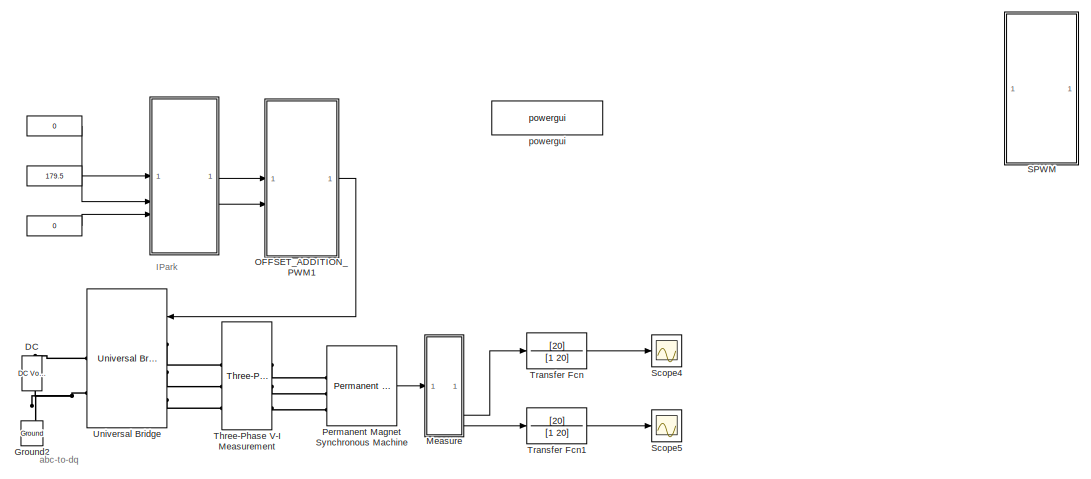
[diagram: root canvas - part 1/2, right side, full height]
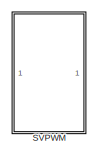
[diagram: root canvas - part 2/2, middle left region]
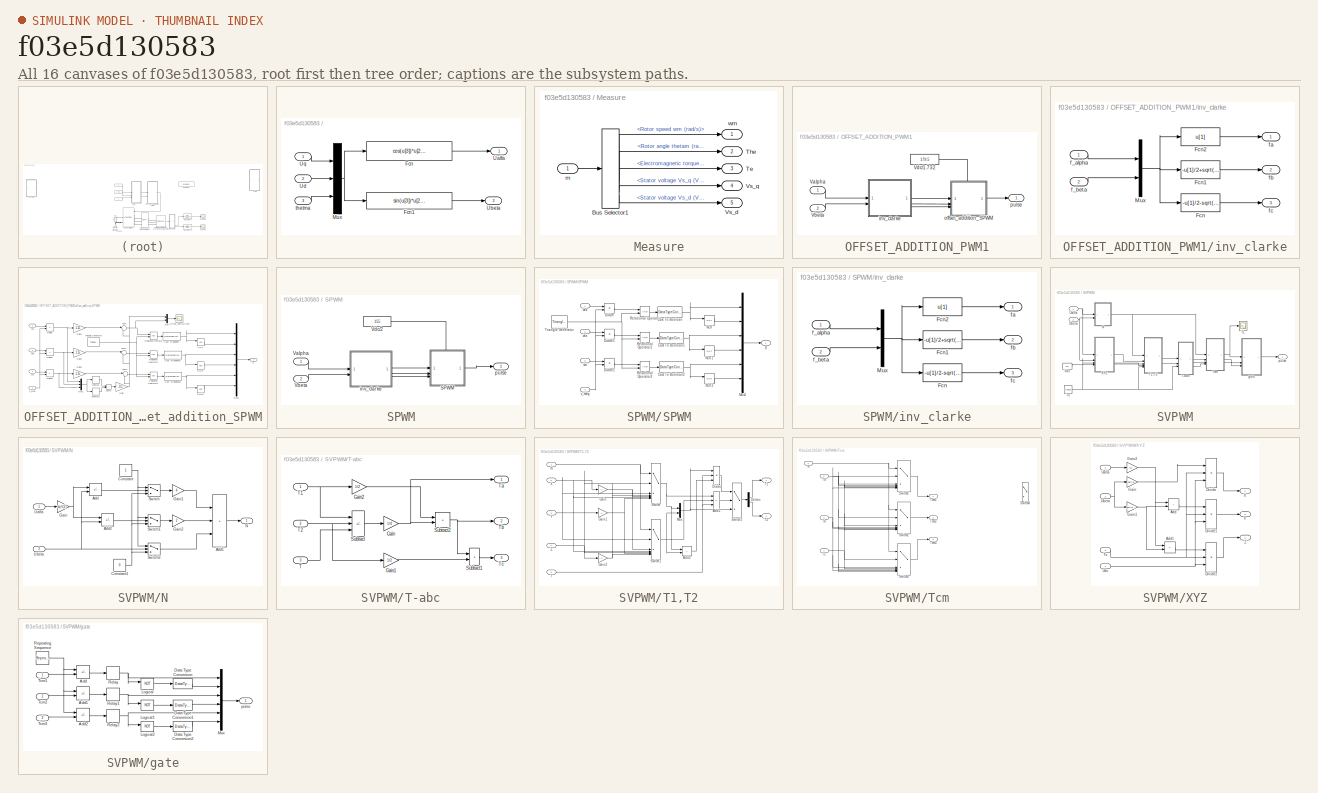
[diagram: thumbnail index - all 16 canvases of the model, root first then tree order]
MODEL slx_f03e5d130583
KIND model
CONFIG AbsTol = auto
CONFIG EnableMultiTasking = on
CONFIG FixedStep = 1e-6
CONFIG MaxStep = auto
CONFIG MinStep = auto
CONFIG RelTol = 1e-3
CONFIG SampleTimeConstraint = Unconstrained
CONFIG SolverName = ode3
CONFIG StartTime = 0.0
CONFIG StopTime = 0.6
BLOCK [Constant]   
  Value = 0
BLOCK [Constant]    
  Value = 179.5
BLOCK [SubSystem]      
BLOCK [Constant]        
  Value = 0
BLOCK [Fcn]      /Fcn
  Expr = cos(u[3])*u[2]-sin(u[3])*u[1]
BLOCK [Fcn]      /Fcn1
  Expr = sin(u[3])*u[2]+cos(u[3])*u[1]
BLOCK [Mux]      /Mux
  DisplayOption = bar
  Inputs = 3
BLOCK [Outport]      /Ualfa
BLOCK [Outport]      /Ubeta
  Port = 2
BLOCK [Inport]      /Ud
  Port = 2
BLOCK [Inport]      /Uq
BLOCK [Inport]      /thetma
  Port = 3
BLOCK [Reference] DC   REF=spsDCVoltageSourceLib/DC Voltage Source
  NameLocation = right
  SourceBlock = spsDCVoltageSourceLib/DC Voltage Source
  SourceType = DC Voltage Source
BLOCK [Reference] Ground2  REF=spsGroundLib/Ground
  NameLocation = right
  SourceBlock = spsGroundLib/Ground
  SourceType = Ground
BLOCK [SubSystem] Measure
BLOCK [BusSelector] Measure/Bus Selector1
  OutputSignals = Rotor speed wm (rad/s),Rotor angle thetam (rad),Electromagnetic torque Te (N*m),Stator voltage Vs_q (V),Stator voltage Vs_d (V)
BLOCK [Outport] Measure/Te
  Port = 3
BLOCK [Outport] Measure/The
  Port = 2
BLOCK [Outport] Measure/Vs_d
  Port = 5
BLOCK [Outport] Measure/Vs_q
  Port = 4
BLOCK [Inport] Measure/m
BLOCK [Outport] Measure/wm
BLOCK [SubSystem] OFFSET_ADDITION_PWM1
  NameLocation = top
BLOCK [Inport] OFFSET_ADDITION_PWM1/Valpha
BLOCK [Inport] OFFSET_ADDITION_PWM1/Vbeta
  Port = 2
BLOCK [Constant] OFFSET_ADDITION_PWM1/Vdc//1.732
  Value = 179.5
BLOCK [SubSystem] OFFSET_ADDITION_PWM1/inv_clarke
BLOCK [Fcn] OFFSET_ADDITION_PWM1/inv_clarke/Fcn
  Expr = -u[1]/2-sqrt(3)*u[2]/2
BLOCK [Fcn] OFFSET_ADDITION_PWM1/inv_clarke/Fcn1
  Expr = -u[1]/2+sqrt(3)*u[2]/2
BLOCK [Fcn] OFFSET_ADDITION_PWM1/inv_clarke/Fcn2
  Expr = u[1]
BLOCK [Mux] OFFSET_ADDITION_PWM1/inv_clarke/Mux
  DisplayOption = bar
  Inputs = 2
BLOCK [Inport] OFFSET_ADDITION_PWM1/inv_clarke/f_alpha
BLOCK [Inport] OFFSET_ADDITION_PWM1/inv_clarke/f_beta
  Port = 2
BLOCK [Outport] OFFSET_ADDITION_PWM1/inv_clarke/fa
BLOCK [Outport] OFFSET_ADDITION_PWM1/inv_clarke/fb
  Port = 2
BLOCK [Outport] OFFSET_ADDITION_PWM1/inv_clarke/fc
  Port = 3
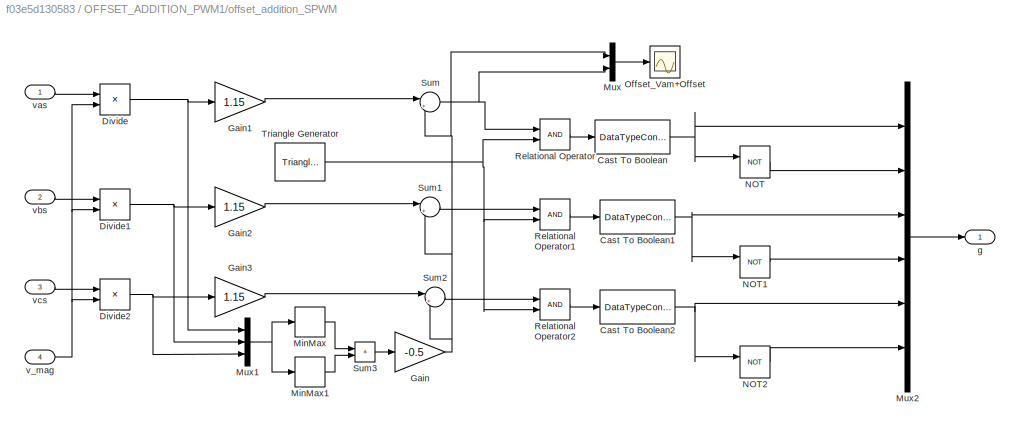
BLOCK [SubSystem] OFFSET_ADDITION_PWM1/offset_addition_SPWM
  PortSchema = {"entries":[{"content":{"sides":[{"content":{"connectorIds":["In1","In2","In3"]},"type":"ConnectorPlacement.EquallySpacedRectSide","uuid":"bd7bea3a-7add-49ec-8b52-f68dbb33beea"},{"content":{"connectorIds":["Out1"],"side":"RIGHT"},"type":"ConnectorPlacement.EquallySpacedRectSide","uuid":"aa5e81bc-27af-49d7-8d73-7e78ac021e04"},{"content":{"connectorIds":["In4"],"side":"TOP"},"type":"ConnectorPlaceme...<+257ch>
BLOCK [DataTypeConversion] OFFSET_ADDITION_PWM1/offset_addition_SPWM/Cast To Boolean
  OutDataTypeStr = boolean
  RndMeth = Floor
  SaturateOnIntegerOverflow = off
BLOCK [DataTypeConversion] OFFSET_ADDITION_PWM1/offset_addition_SPWM/Cast To Boolean1
  OutDataTypeStr = boolean
  RndMeth = Floor
  SaturateOnIntegerOverflow = off
BLOCK [DataTypeConversion] OFFSET_ADDITION_PWM1/offset_addition_SPWM/Cast To Boolean2
  OutDataTypeStr = boolean
  RndMeth = Floor
  SaturateOnIntegerOverflow = off
BLOCK [Product] OFFSET_ADDITION_PWM1/offset_addition_SPWM/Divide
  Inputs = */
BLOCK [Product] OFFSET_ADDITION_PWM1/offset_addition_SPWM/Divide1
  Inputs = */
BLOCK [Product] OFFSET_ADDITION_PWM1/offset_addition_SPWM/Divide2
  Inputs = */
BLOCK [Gain] OFFSET_ADDITION_PWM1/offset_addition_SPWM/Gain
  Gain = -0.5
BLOCK [Gain] OFFSET_ADDITION_PWM1/offset_addition_SPWM/Gain1
  Gain = 1.15
BLOCK [Gain] OFFSET_ADDITION_PWM1/offset_addition_SPWM/Gain2
  Gain = 1.15
BLOCK [Gain] OFFSET_ADDITION_PWM1/offset_addition_SPWM/Gain3
  Gain = 1.15
BLOCK [MinMax] OFFSET_ADDITION_PWM1/offset_addition_SPWM/MinMax
  Function = max
BLOCK [MinMax] OFFSET_ADDITION_PWM1/offset_addition_SPWM/MinMax1
BLOCK [Mux] OFFSET_ADDITION_PWM1/offset_addition_SPWM/Mux
  DisplayOption = bar
  Inputs = 2
BLOCK [Mux] OFFSET_ADDITION_PWM1/offset_addition_SPWM/Mux1
  DisplayOption = bar
  Inputs = 3
BLOCK [Mux] OFFSET_ADDITION_PWM1/offset_addition_SPWM/Mux2
  DisplayOption = bar
  Inputs = 6
BLOCK [Logic] OFFSET_ADDITION_PWM1/offset_addition_SPWM/NOT
  AllPortsSameDT = off
  IconShape = distinctive
  Operator = NOT
  OutDataTypeStr = boolean
BLOCK [Logic] OFFSET_ADDITION_PWM1/offset_addition_SPWM/NOT1
  AllPortsSameDT = off
  IconShape = distinctive
  Operator = NOT
  OutDataTypeStr = boolean
BLOCK [Logic] OFFSET_ADDITION_PWM1/offset_addition_SPWM/NOT2
  AllPortsSameDT = off
  IconShape = distinctive
  Operator = NOT
  OutDataTypeStr = boolean
BLOCK [Scope] OFFSET_ADDITION_PWM1/offset_addition_SPWM/Offset_Vam+Offset
  Floating = off
  NumInputPorts = 1
  ScopeSpecificationString = Simulink.scopes.TimeScopeBlockCfg('CurrentConfiguration', extmgr.ConfigurationSet(extmgr.Configuration('Core','General UI',true,'FigureColor',[1 1 1]),extmgr.Configuration('Core','Source UI',true),extmgr.Configuration('Sources','WiredSimulink',true,'DataLoggingVariableName','ScopeData1'),extmgr.Configuration('Visuals','Time Domain',true,'SerializedDisplays',{struct('MinYLimReal','-1.03834','MaxYLi...<+1562ch>
BLOCK [RelationalOperator] OFFSET_ADDITION_PWM1/offset_addition_SPWM/Relational Operator
  InputSameDT = off
  OutDataTypeStr = boolean
  RndMeth = Simplest
BLOCK [RelationalOperator] OFFSET_ADDITION_PWM1/offset_addition_SPWM/Relational Operator1
  InputSameDT = off
  OutDataTypeStr = boolean
  RndMeth = Simplest
BLOCK [RelationalOperator] OFFSET_ADDITION_PWM1/offset_addition_SPWM/Relational Operator2
  InputSameDT = off
  OutDataTypeStr = boolean
  RndMeth = Simplest
BLOCK [Sum] OFFSET_ADDITION_PWM1/offset_addition_SPWM/Sum
  Inputs = |++
BLOCK [Sum] OFFSET_ADDITION_PWM1/offset_addition_SPWM/Sum1
  Inputs = |++
BLOCK [Sum] OFFSET_ADDITION_PWM1/offset_addition_SPWM/Sum2
  Inputs = |++
BLOCK [Sum] OFFSET_ADDITION_PWM1/offset_addition_SPWM/Sum3
  IconShape = rectangular
BLOCK [Reference] OFFSET_ADDITION_PWM1/offset_addition_SPWM/Triangle Generator  REF=spsTriangleGeneratorLib/Triangle
Generator
  LibrarySourceBlock = sps_lib/Sources/Signal Generator Sources/Triangle\nGenerator
  SourceBlock = spsTriangleGeneratorLib/Triangle\nGenerator
  SourceType = Triangle Generator
BLOCK [Outport] OFFSET_ADDITION_PWM1/offset_addition_SPWM/g
BLOCK [Inport] OFFSET_ADDITION_PWM1/offset_addition_SPWM/v_mag
  Port = 4
BLOCK [Inport] OFFSET_ADDITION_PWM1/offset_addition_SPWM/vas
BLOCK [Inport] OFFSET_ADDITION_PWM1/offset_addition_SPWM/vbs
  Port = 2
BLOCK [Inport] OFFSET_ADDITION_PWM1/offset_addition_SPWM/vcs
  Port = 3
BLOCK [Outport] OFFSET_ADDITION_PWM1/pulse
BLOCK [Reference] Permanent Magnet Synchronous Machine   REF=spsPermanentMagnetSynchronousMachineLib/Permanent Magnet
Synchronous Machine
  SourceBlock = spsPermanentMagnetSynchronousMachineLib/Permanent Magnet\nSynchronous Machine
  SourceType = Permanent Magnet Synchronous Machine
BLOCK [SubSystem] SPWM
  NameLocation = top
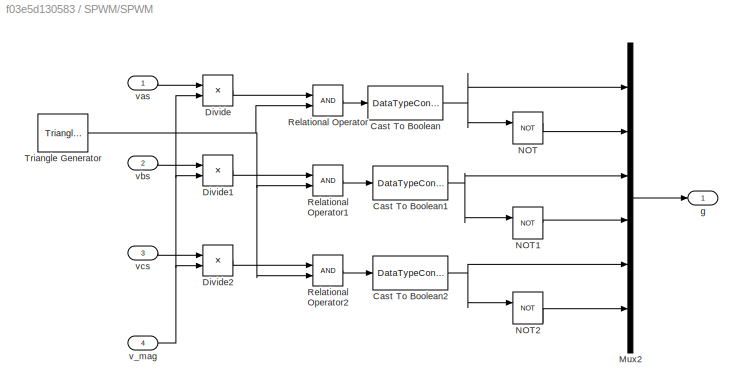
BLOCK [SubSystem] SPWM/SPWM
  PortSchema = {"entries":[{"content":{"sides":[{"content":{"connectorIds":["In1","In2","In3"]},"type":"ConnectorPlacement.EquallySpacedRectSide","uuid":"2e80e29a-e7ca-4bee-8f3b-5f9ffed0b982"},{"content":{"connectorIds":["Out1"],"side":"RIGHT"},"type":"ConnectorPlacement.EquallySpacedRectSide","uuid":"0c6270c9-1844-47ee-a65a-a4a71ede4f1c"},{"content":{"connectorIds":["In4"],"side":"TOP"},"type":"ConnectorPlaceme...<+257ch>
BLOCK [DataTypeConversion] SPWM/SPWM/Cast To Boolean
  OutDataTypeStr = boolean
  RndMeth = Floor
  SaturateOnIntegerOverflow = off
BLOCK [DataTypeConversion] SPWM/SPWM/Cast To Boolean1
  OutDataTypeStr = boolean
  RndMeth = Floor
  SaturateOnIntegerOverflow = off
BLOCK [DataTypeConversion] SPWM/SPWM/Cast To Boolean2
  OutDataTypeStr = boolean
  RndMeth = Floor
  SaturateOnIntegerOverflow = off
BLOCK [Product] SPWM/SPWM/Divide
  Inputs = */
BLOCK [Product] SPWM/SPWM/Divide1
  Inputs = */
BLOCK [Product] SPWM/SPWM/Divide2
  Inputs = */
BLOCK [Mux] SPWM/SPWM/Mux2
  DisplayOption = bar
  Inputs = 6
BLOCK [Logic] SPWM/SPWM/NOT
  AllPortsSameDT = off
  IconShape = distinctive
  Operator = NOT
  OutDataTypeStr = boolean
BLOCK [Logic] SPWM/SPWM/NOT1
  AllPortsSameDT = off
  IconShape = distinctive
  Operator = NOT
  OutDataTypeStr = boolean
BLOCK [Logic] SPWM/SPWM/NOT2
  AllPortsSameDT = off
  IconShape = distinctive
  Operator = NOT
  OutDataTypeStr = boolean
BLOCK [RelationalOperator] SPWM/SPWM/Relational Operator
  InputSameDT = off
  OutDataTypeStr = boolean
  RndMeth = Simplest
BLOCK [RelationalOperator] SPWM/SPWM/Relational Operator1
  InputSameDT = off
  OutDataTypeStr = boolean
  RndMeth = Simplest
BLOCK [RelationalOperator] SPWM/SPWM/Relational Operator2
  InputSameDT = off
  OutDataTypeStr = boolean
  RndMeth = Simplest
BLOCK [Reference] SPWM/SPWM/Triangle Generator  REF=spsTriangleGeneratorLib/Triangle
Generator
  LibrarySourceBlock = sps_lib/Sources/Signal Generator Sources/Triangle\nGenerator
  SourceBlock = spsTriangleGeneratorLib/Triangle\nGenerator
  SourceType = Triangle Generator
BLOCK [Outport] SPWM/SPWM/g
BLOCK [Inport] SPWM/SPWM/v_mag
  Port = 4
BLOCK [Inport] SPWM/SPWM/vas
BLOCK [Inport] SPWM/SPWM/vbs
  Port = 2
BLOCK [Inport] SPWM/SPWM/vcs
  Port = 3
BLOCK [Inport] SPWM/Valpha
BLOCK [Inport] SPWM/Vbeta
  Port = 2
BLOCK [Constant] SPWM/Vdc//2
  Value = 155
BLOCK [SubSystem] SPWM/inv_clarke
BLOCK [Fcn] SPWM/inv_clarke/Fcn
  Expr = -u[1]/2-sqrt(3)*u[2]/2
BLOCK [Fcn] SPWM/inv_clarke/Fcn1
  Expr = -u[1]/2+sqrt(3)*u[2]/2
BLOCK [Fcn] SPWM/inv_clarke/Fcn2
  Expr = u[1]
BLOCK [Mux] SPWM/inv_clarke/Mux
  DisplayOption = bar
  Inputs = 2
BLOCK [Inport] SPWM/inv_clarke/f_alpha
BLOCK [Inport] SPWM/inv_clarke/f_beta
  Port = 2
BLOCK [Outport] SPWM/inv_clarke/fa
BLOCK [Outport] SPWM/inv_clarke/fb
  Port = 2
BLOCK [Outport] SPWM/inv_clarke/fc
  Port = 3
BLOCK [Outport] SPWM/pulse
BLOCK [SubSystem] SVPWM
BLOCK [SubSystem] SVPWM/N
BLOCK [Sum] SVPWM/N/Add
  IconShape = rectangular
  Inputs = --
BLOCK [Sum] SVPWM/N/Add1
  IconShape = rectangular
  Inputs = +++
BLOCK [Sum] SVPWM/N/Add2
  IconShape = rectangular
  Inputs = +-
BLOCK [Constant] SVPWM/N/Constant
BLOCK [Constant] SVPWM/N/Constant1
  Value = 0
BLOCK [Gain] SVPWM/N/Gain
  Gain = sqrt(3)
BLOCK [Gain] SVPWM/N/Gain1
  Gain = 4
BLOCK [Gain] SVPWM/N/Gain2
  Gain = 2
BLOCK [Outport] SVPWM/N/N
BLOCK [Switch] SVPWM/N/Switch
  InputSameDT = off
  SaturateOnIntegerOverflow = off
BLOCK [Switch] SVPWM/N/Switch1
  InputSameDT = off
  SaturateOnIntegerOverflow = off
BLOCK [Switch] SVPWM/N/Switch2
  InputSameDT = off
  SaturateOnIntegerOverflow = off
BLOCK [Inport] SVPWM/N/Ualfa
BLOCK [Inport] SVPWM/N/Ubeta
  Port = 2
BLOCK [SubSystem] SVPWM/T-abc
BLOCK [Gain] SVPWM/T-abc/Gain
  Gain = 1/4
BLOCK [Gain] SVPWM/T-abc/Gain1
  Gain = 1/2
BLOCK [Gain] SVPWM/T-abc/Gain2
  Gain = 1/2
BLOCK [Sum] SVPWM/T-abc/Subtract
  IconShape = rectangular
  Inputs = --+
BLOCK [Sum] SVPWM/T-abc/Subtract1
  IconShape = rectangular
BLOCK [Sum] SVPWM/T-abc/Subtract2
  IconShape = rectangular
BLOCK [Inport] SVPWM/T-abc/T
  Port = 3
BLOCK [Inport] SVPWM/T-abc/T1
BLOCK [Inport] SVPWM/T-abc/T2
  Port = 2
BLOCK [Outport] SVPWM/T-abc/Ta
BLOCK [Outport] SVPWM/T-abc/Tb
  Port = 2
BLOCK [Outport] SVPWM/T-abc/Tc
  Port = 3
BLOCK [SubSystem] SVPWM/T1,T2
BLOCK [Sum] SVPWM/T1,T2/Add1
  IconShape = rectangular
  Inputs = ++-
BLOCK [Sum] SVPWM/T1,T2/Add2
  IconShape = rectangular
BLOCK [Demux] SVPWM/T1,T2/Demux
  Outputs = 2
BLOCK [Product] SVPWM/T1,T2/Divide
  Inputs = **/
BLOCK [Gain] SVPWM/T1,T2/Gain
  Gain = -1
BLOCK [Gain] SVPWM/T1,T2/Gain1
  Gain = -1
BLOCK [Gain] SVPWM/T1,T2/Gain2
  Gain = -1
BLOCK [Mux] SVPWM/T1,T2/Mux
  DisplayOption = bar
  Inputs = 2
BLOCK [Inport] SVPWM/T1,T2/N
BLOCK [MultiPortSwitch] SVPWM/T1,T2/Switch
  DiagnosticForDefault = None
  InputSameDT = off
  Inputs = 6
  SaturateOnIntegerOverflow = off
BLOCK [MultiPortSwitch] SVPWM/T1,T2/Switch1
  DiagnosticForDefault = None
  InputSameDT = off
  Inputs = 6
  SaturateOnIntegerOverflow = off
BLOCK [Switch] SVPWM/T1,T2/Switch2
  InputSameDT = off
  SaturateOnIntegerOverflow = off
BLOCK [Inport] SVPWM/T1,T2/T
  Port = 5
BLOCK [Outport] SVPWM/T1,T2/T1
BLOCK [Outport] SVPWM/T1,T2/T2
  Port = 2
BLOCK [Inport] SVPWM/T1,T2/X
  Port = 2
BLOCK [Inport] SVPWM/T1,T2/Y
  Port = 3
BLOCK [Inport] SVPWM/T1,T2/Z
  Port = 4
BLOCK [Scope] SVPWM/TL
  Floating = off
  NumInputPorts = 1
  ScopeSpecificationString = C++SS(StrPVP('Location','[6, 45, 1286, 762]'),StrPVP('Open','off'),StrPVP('ZoomMode','yonly'),MxPVP('AxesTitles',54,'struct(''axes1'',''%<SignalLabel>'')'),StrPVP('ShowLegends','off'),StrPVP('YMin','3.5e-005'),StrPVP('YMax','6.5e-005'),StrPVP('SaveName','ScopeData12'),StrPVP('DataFormat','StructureWithTime'),StrPVP('LimitDataPoints','off'),StrPVP('BlockParamSampleTime','0'),StrPVP('ScrollMode','of...<+67ch>
BLOCK [SubSystem] SVPWM/Tcm
BLOCK [Inport] SVPWM/Tcm/N
BLOCK [MultiPortSwitch] SVPWM/Tcm/Switch1
  DiagnosticForDefault = None
  InputSameDT = off
  Inputs = 6
  SaturateOnIntegerOverflow = off
BLOCK [MultiPortSwitch] SVPWM/Tcm/Switch2
  DiagnosticForDefault = None
  InputSameDT = off
  Inputs = 6
  SaturateOnIntegerOverflow = off
BLOCK [MultiPortSwitch] SVPWM/Tcm/Switch3
  DiagnosticForDefault = None
  InputSameDT = off
  Inputs = 6
  SaturateOnIntegerOverflow = off
BLOCK [Switch] SVPWM/Tcm/Switch4
  InputSameDT = off
  SaturateOnIntegerOverflow = off
BLOCK [Inport] SVPWM/Tcm/Ta
  Port = 2
BLOCK [Inport] SVPWM/Tcm/Tb
  Port = 3
BLOCK [Inport] SVPWM/Tcm/Tc
  Port = 4
BLOCK [Outport] SVPWM/Tcm/Tcm1
BLOCK [Outport] SVPWM/Tcm/Tcm2
  Port = 2
BLOCK [Outport] SVPWM/Tcm/Tcm3
  Port = 3
BLOCK [Constant] SVPWM/Ts
  SampleTime = -1
  Value = 0.0002
BLOCK [Inport] SVPWM/Ualfa
BLOCK [Inport] SVPWM/Ubeta
  Port = 2
BLOCK [Constant] SVPWM/Vdc
  Value = 311
BLOCK [SubSystem] SVPWM/XYZ
BLOCK [Sum] SVPWM/XYZ/Add
  IconShape = rectangular
BLOCK [Sum] SVPWM/XYZ/Add1
  IconShape = rectangular
  Inputs = -+
BLOCK [Product] SVPWM/XYZ/Divide
  Inputs = **/
BLOCK [Product] SVPWM/XYZ/Divide1
  Inputs = **/
BLOCK [Product] SVPWM/XYZ/Divide2
  Inputs = **/
BLOCK [Gain] SVPWM/XYZ/Gain
  Gain = sqrt(3)
BLOCK [Gain] SVPWM/XYZ/Gain1
  Gain = sqrt(3)/2
BLOCK [Gain] SVPWM/XYZ/Gain2
  Gain = 3/2
BLOCK [Inport] SVPWM/XYZ/Ts
  Port = 3
BLOCK [Inport] SVPWM/XYZ/Ualfa
BLOCK [Inport] SVPWM/XYZ/Ubeta
  Port = 2
BLOCK [Inport] SVPWM/XYZ/Udc
  Port = 4
BLOCK [Outport] SVPWM/XYZ/X
BLOCK [Outport] SVPWM/XYZ/Y
  Port = 2
BLOCK [Outport] SVPWM/XYZ/Z
  Port = 3
BLOCK [SubSystem] SVPWM/gate
BLOCK [Sum] SVPWM/gate/Add
  IconShape = rectangular
  Inputs = +-
BLOCK [Sum] SVPWM/gate/Add1
  IconShape = rectangular
  Inputs = +-
BLOCK [Sum] SVPWM/gate/Add2
  IconShape = rectangular
  Inputs = +-
BLOCK [DataTypeConversion] SVPWM/gate/Data Type Conversion
  OutDataTypeStr = double
  RndMeth = Floor
  SaturateOnIntegerOverflow = off
BLOCK [DataTypeConversion] SVPWM/gate/Data Type Conversion1
  OutDataTypeStr = double
  RndMeth = Floor
  SaturateOnIntegerOverflow = off
BLOCK [DataTypeConversion] SVPWM/gate/Data Type Conversion2
  OutDataTypeStr = double
  RndMeth = Floor
  SaturateOnIntegerOverflow = off
BLOCK [Logic] SVPWM/gate/Logical
  AllPortsSameDT = off
  Operator = NOT
  OutDataTypeStr = boolean
BLOCK [Logic] SVPWM/gate/Logical1
  AllPortsSameDT = off
  Operator = NOT
  OutDataTypeStr = boolean
BLOCK [Logic] SVPWM/gate/Logical2
  AllPortsSameDT = off
  Operator = NOT
  OutDataTypeStr = boolean
BLOCK [Mux] SVPWM/gate/Mux
  DisplayOption = bar
  Inputs = 6
BLOCK [Relay] SVPWM/gate/Relay
BLOCK [Relay] SVPWM/gate/Relay1
BLOCK [Relay] SVPWM/gate/Relay2
BLOCK [Reference] SVPWM/gate/Repeating Sequence  REF=simulink/Sources/Repeating
Sequence
  SourceBlock = simulink/Sources/Repeating\nSequence
  SourceType = Repeating table
BLOCK [Inport] SVPWM/gate/Tcm1
BLOCK [Inport] SVPWM/gate/Tcm2
  Port = 2
BLOCK [Inport] SVPWM/gate/Tcm3
  Port = 3
BLOCK [Outport] SVPWM/gate/pulse
BLOCK [Outport] SVPWM/pulse
BLOCK [Scope] Scope4
  Floating = off
  NumInputPorts = 1
  ScopeSpecificationString = Simulink.scopes.TimeScopeBlockCfg('CurrentConfiguration', extmgr.ConfigurationSet(extmgr.Configuration('Core','General UI',true,'FigureColor',[1 1 1]),extmgr.Configuration('Core','Source UI',true),extmgr.Configuration('Sources','WiredSimulink',true,'DataLoggingVariableName','ScopeData4'),extmgr.Configuration('Visuals','Time Domain',true,'SerializedDisplays',{struct('MinYLimReal','-0.00000000000000...<+1777ch>
BLOCK [Scope] Scope5
  Floating = off
  NumInputPorts = 1
  ScopeSpecificationString = Simulink.scopes.TimeScopeBlockCfg('CurrentConfiguration', extmgr.ConfigurationSet(extmgr.Configuration('Core','General UI',true,'FigureColor',[1 1 1]),extmgr.Configuration('Core','Source UI',true),extmgr.Configuration('Sources','WiredSimulink',true,'DataLoggingVariableName','ScopeData5'),extmgr.Configuration('Visuals','Time Domain',true,'SerializedDisplays',{struct('MinYLimReal','175.19711','MaxYL...<+1712ch>
BLOCK [Reference] Three-Phase V-I Measurement  REF=spsThreePhaseVIMeasurementLib/Three-Phase
V-I Measurement
  LibrarySourceBlock = sps_lib/Sensors and Measurements/Three-Phase\nV-I Measurement
  SourceBlock = spsThreePhaseVIMeasurementLib/Three-Phase\nV-I Measurement
  SourceType = Three-Phase VI Measurement
BLOCK [TransferFcn] Transfer Fcn
  Denominator = [1 20]
  Numerator = [20]
BLOCK [TransferFcn] Transfer Fcn1
  Denominator = [1 20]
  Numerator = [20]
BLOCK [Reference] Universal Bridge   REF=spsUniversalBridgeLib/Universal Bridge
  NameLocation = top
  SourceBlock = spsUniversalBridgeLib/Universal Bridge
  SourceType = Universal Bridge
BLOCK [Reference] powergui  REF=spspowerguiLib/powergui
  Priority = 1
  SourceBlock = spspowerguiLib/powergui
  SourceType = PSB option menu block
ANNOTATION (root): IPark
ANNOTATION (root): abc-to-dq
LINE        :1 ->      :3
LINE      /Fcn1:1 ->      /Ubeta:1
LINE      /Fcn:1 ->      /Ualfa:1
NET      /Mux:1 ->      /Fcn1:1,      /Fcn:1
LINE      /Ud:1 ->      /Mux:2
LINE      /Uq:1 ->      /Mux:1
LINE      /thetma:1 ->      /Mux:3
LINE      :1 -> OFFSET_ADDITION_PWM1:1
LINE      :2 -> OFFSET_ADDITION_PWM1:2
LINE    :1 ->      :2
LINE   :1 ->      :1
LINE Measure/Bus Selector1:1 -> Measure/wm:1
LINE Measure/Bus Selector1:2 -> Measure/The:1
LINE Measure/Bus Selector1:3 -> Measure/Te:1
LINE Measure/Bus Selector1:4 -> Measure/Vs_q:1
LINE Measure/Bus Selector1:5 -> Measure/Vs_d:1
LINE Measure/m:1 -> Measure/Bus Selector1:1
LINE Measure:4 -> Transfer Fcn:1
LINE Measure:5 -> Transfer Fcn1:1
LINE OFFSET_ADDITION_PWM1/Valpha:1 -> OFFSET_ADDITION_PWM1/inv_clarke:1
LINE OFFSET_ADDITION_PWM1/Vbeta:1 -> OFFSET_ADDITION_PWM1/inv_clarke:2
LINE OFFSET_ADDITION_PWM1/Vdc//1.732:1 -> OFFSET_ADDITION_PWM1/offset_addition_SPWM:4
LINE OFFSET_ADDITION_PWM1/inv_clarke/Fcn1:1 -> OFFSET_ADDITION_PWM1/inv_clarke/fb:1
LINE OFFSET_ADDITION_PWM1/inv_clarke/Fcn2:1 -> OFFSET_ADDITION_PWM1/inv_clarke/fa:1
LINE OFFSET_ADDITION_PWM1/inv_clarke/Fcn:1 -> OFFSET_ADDITION_PWM1/inv_clarke/fc:1
NET OFFSET_ADDITION_PWM1/inv_clarke/Mux:1 -> OFFSET_ADDITION_PWM1/inv_clarke/Fcn1:1, OFFSET_ADDITION_PWM1/inv_clarke/Fcn2:1, OFFSET_ADDITION_PWM1/inv_clarke/Fcn:1
LINE OFFSET_ADDITION_PWM1/inv_clarke/f_alpha:1 -> OFFSET_ADDITION_PWM1/inv_clarke/Mux:1
LINE OFFSET_ADDITION_PWM1/inv_clarke/f_beta:1 -> OFFSET_ADDITION_PWM1/inv_clarke/Mux:2
LINE OFFSET_ADDITION_PWM1/inv_clarke:1 -> OFFSET_ADDITION_PWM1/offset_addition_SPWM:1
LINE OFFSET_ADDITION_PWM1/inv_clarke:2 -> OFFSET_ADDITION_PWM1/offset_addition_SPWM:2
LINE OFFSET_ADDITION_PWM1/inv_clarke:3 -> OFFSET_ADDITION_PWM1/offset_addition_SPWM:3
NET OFFSET_ADDITION_PWM1/offset_addition_SPWM/Cast To Boolean1:1 -> OFFSET_ADDITION_PWM1/offset_addition_SPWM/Mux2:3, OFFSET_ADDITION_PWM1/offset_addition_SPWM/NOT1:1
NET OFFSET_ADDITION_PWM1/offset_addition_SPWM/Cast To Boolean2:1 -> OFFSET_ADDITION_PWM1/offset_addition_SPWM/Mux2:5, OFFSET_ADDITION_PWM1/offset_addition_SPWM/NOT2:1
NET OFFSET_ADDITION_PWM1/offset_addition_SPWM/Cast To Boolean:1 -> OFFSET_ADDITION_PWM1/offset_addition_SPWM/Mux2:1, OFFSET_ADDITION_PWM1/offset_addition_SPWM/NOT:1
NET OFFSET_ADDITION_PWM1/offset_addition_SPWM/Divide1:1 -> OFFSET_ADDITION_PWM1/offset_addition_SPWM/Gain2:1, OFFSET_ADDITION_PWM1/offset_addition_SPWM/Mux1:2
NET OFFSET_ADDITION_PWM1/offset_addition_SPWM/Divide2:1 -> OFFSET_ADDITION_PWM1/offset_addition_SPWM/Gain3:1, OFFSET_ADDITION_PWM1/offset_addition_SPWM/Mux1:3
NET OFFSET_ADDITION_PWM1/offset_addition_SPWM/Divide:1 -> OFFSET_ADDITION_PWM1/offset_addition_SPWM/Gain1:1, OFFSET_ADDITION_PWM1/offset_addition_SPWM/Mux1:1
LINE OFFSET_ADDITION_PWM1/offset_addition_SPWM/Gain1:1 -> OFFSET_ADDITION_PWM1/offset_addition_SPWM/Sum:1
LINE OFFSET_ADDITION_PWM1/offset_addition_SPWM/Gain2:1 -> OFFSET_ADDITION_PWM1/offset_addition_SPWM/Sum1:1
LINE OFFSET_ADDITION_PWM1/offset_addition_SPWM/Gain3:1 -> OFFSET_ADDITION_PWM1/offset_addition_SPWM/Sum2:1
NET OFFSET_ADDITION_PWM1/offset_addition_SPWM/Gain:1 -> OFFSET_ADDITION_PWM1/offset_addition_SPWM/Mux:1, OFFSET_ADDITION_PWM1/offset_addition_SPWM/Sum1:2, OFFSET_ADDITION_PWM1/offset_addition_SPWM/Sum2:2, OFFSET_ADDITION_PWM1/offset_addition_SPWM/Sum:2
LINE OFFSET_ADDITION_PWM1/offset_addition_SPWM/MinMax1:1 -> OFFSET_ADDITION_PWM1/offset_addition_SPWM/Sum3:2
LINE OFFSET_ADDITION_PWM1/offset_addition_SPWM/MinMax:1 -> OFFSET_ADDITION_PWM1/offset_addition_SPWM/Sum3:1
NET OFFSET_ADDITION_PWM1/offset_addition_SPWM/Mux1:1 -> OFFSET_ADDITION_PWM1/offset_addition_SPWM/MinMax1:1, OFFSET_ADDITION_PWM1/offset_addition_SPWM/MinMax:1
LINE OFFSET_ADDITION_PWM1/offset_addition_SPWM/Mux2:1 -> OFFSET_ADDITION_PWM1/offset_addition_SPWM/g:1
LINE OFFSET_ADDITION_PWM1/offset_addition_SPWM/Mux:1 -> OFFSET_ADDITION_PWM1/offset_addition_SPWM/Offset_Vam+Offset:1
LINE OFFSET_ADDITION_PWM1/offset_addition_SPWM/NOT1:1 -> OFFSET_ADDITION_PWM1/offset_addition_SPWM/Mux2:4
LINE OFFSET_ADDITION_PWM1/offset_addition_SPWM/NOT2:1 -> OFFSET_ADDITION_PWM1/offset_addition_SPWM/Mux2:6
LINE OFFSET_ADDITION_PWM1/offset_addition_SPWM/NOT:1 -> OFFSET_ADDITION_PWM1/offset_addition_SPWM/Mux2:2
LINE OFFSET_ADDITION_PWM1/offset_addition_SPWM/Relational Operator1:1 -> OFFSET_ADDITION_PWM1/offset_addition_SPWM/Cast To Boolean1:1
LINE OFFSET_ADDITION_PWM1/offset_addition_SPWM/Relational Operator2:1 -> OFFSET_ADDITION_PWM1/offset_addition_SPWM/Cast To Boolean2:1
LINE OFFSET_ADDITION_PWM1/offset_addition_SPWM/Relational Operator:1 -> OFFSET_ADDITION_PWM1/offset_addition_SPWM/Cast To Boolean:1
LINE OFFSET_ADDITION_PWM1/offset_addition_SPWM/Sum1:1 -> OFFSET_ADDITION_PWM1/offset_addition_SPWM/Relational Operator1:1
LINE OFFSET_ADDITION_PWM1/offset_addition_SPWM/Sum2:1 -> OFFSET_ADDITION_PWM1/offset_addition_SPWM/Relational Operator2:1
LINE OFFSET_ADDITION_PWM1/offset_addition_SPWM/Sum3:1 -> OFFSET_ADDITION_PWM1/offset_addition_SPWM/Gain:1
NET OFFSET_ADDITION_PWM1/offset_addition_SPWM/Sum:1 -> OFFSET_ADDITION_PWM1/offset_addition_SPWM/Mux:2, OFFSET_ADDITION_PWM1/offset_addition_SPWM/Relational Operator:1
NET OFFSET_ADDITION_PWM1/offset_addition_SPWM/Triangle Generator:1 -> OFFSET_ADDITION_PWM1/offset_addition_SPWM/Relational Operator1:2, OFFSET_ADDITION_PWM1/offset_addition_SPWM/Relational Operator2:2, OFFSET_ADDITION_PWM1/offset_addition_SPWM/Relational Operator:2
NET OFFSET_ADDITION_PWM1/offset_addition_SPWM/v_mag:1 -> OFFSET_ADDITION_PWM1/offset_addition_SPWM/Divide1:2, OFFSET_ADDITION_PWM1/offset_addition_SPWM/Divide2:2, OFFSET_ADDITION_PWM1/offset_addition_SPWM/Divide:2
LINE OFFSET_ADDITION_PWM1/offset_addition_SPWM/vas:1 -> OFFSET_ADDITION_PWM1/offset_addition_SPWM/Divide:1
LINE OFFSET_ADDITION_PWM1/offset_addition_SPWM/vbs:1 -> OFFSET_ADDITION_PWM1/offset_addition_SPWM/Divide1:1
LINE OFFSET_ADDITION_PWM1/offset_addition_SPWM/vcs:1 -> OFFSET_ADDITION_PWM1/offset_addition_SPWM/Divide2:1
LINE OFFSET_ADDITION_PWM1/offset_addition_SPWM:1 -> OFFSET_ADDITION_PWM1/pulse:1
LINE OFFSET_ADDITION_PWM1:1 -> Universal Bridge :1
LINE Permanent Magnet Synchronous Machine :1 -> Measure:1
NET SPWM/SPWM/Cast To Boolean1:1 -> SPWM/SPWM/Mux2:3, SPWM/SPWM/NOT1:1
NET SPWM/SPWM/Cast To Boolean2:1 -> SPWM/SPWM/Mux2:5, SPWM/SPWM/NOT2:1
NET SPWM/SPWM/Cast To Boolean:1 -> SPWM/SPWM/Mux2:1, SPWM/SPWM/NOT:1
LINE SPWM/SPWM/Divide1:1 -> SPWM/SPWM/Relational Operator1:1
LINE SPWM/SPWM/Divide2:1 -> SPWM/SPWM/Relational Operator2:1
LINE SPWM/SPWM/Divide:1 -> SPWM/SPWM/Relational Operator:1
LINE SPWM/SPWM/Mux2:1 -> SPWM/SPWM/g:1
LINE SPWM/SPWM/NOT1:1 -> SPWM/SPWM/Mux2:4
LINE SPWM/SPWM/NOT2:1 -> SPWM/SPWM/Mux2:6
LINE SPWM/SPWM/NOT:1 -> SPWM/SPWM/Mux2:2
LINE SPWM/SPWM/Relational Operator1:1 -> SPWM/SPWM/Cast To Boolean1:1
LINE SPWM/SPWM/Relational Operator2:1 -> SPWM/SPWM/Cast To Boolean2:1
LINE SPWM/SPWM/Relational Operator:1 -> SPWM/SPWM/Cast To Boolean:1
NET SPWM/SPWM/Triangle Generator:1 -> SPWM/SPWM/Relational Operator1:2, SPWM/SPWM/Relational Operator2:2, SPWM/SPWM/Relational Operator:2
NET SPWM/SPWM/v_mag:1 -> SPWM/SPWM/Divide1:2, SPWM/SPWM/Divide2:2, SPWM/SPWM/Divide:2
LINE SPWM/SPWM/vas:1 -> SPWM/SPWM/Divide:1
LINE SPWM/SPWM/vbs:1 -> SPWM/SPWM/Divide1:1
LINE SPWM/SPWM/vcs:1 -> SPWM/SPWM/Divide2:1
LINE SPWM/SPWM:1 -> SPWM/pulse:1
LINE SPWM/Valpha:1 -> SPWM/inv_clarke:1
LINE SPWM/Vbeta:1 -> SPWM/inv_clarke:2
LINE SPWM/Vdc//2:1 -> SPWM/SPWM:4
LINE SPWM/inv_clarke/Fcn1:1 -> SPWM/inv_clarke/fb:1
LINE SPWM/inv_clarke/Fcn2:1 -> SPWM/inv_clarke/fa:1
LINE SPWM/inv_clarke/Fcn:1 -> SPWM/inv_clarke/fc:1
NET SPWM/inv_clarke/Mux:1 -> SPWM/inv_clarke/Fcn1:1, SPWM/inv_clarke/Fcn2:1, SPWM/inv_clarke/Fcn:1
LINE SPWM/inv_clarke/f_alpha:1 -> SPWM/inv_clarke/Mux:1
LINE SPWM/inv_clarke/f_beta:1 -> SPWM/inv_clarke/Mux:2
LINE SPWM/inv_clarke:1 -> SPWM/SPWM:1
LINE SPWM/inv_clarke:2 -> SPWM/SPWM:2
LINE SPWM/inv_clarke:3 -> SPWM/SPWM:3
LINE SVPWM/N/Add1:1 -> SVPWM/N/N:1
LINE SVPWM/N/Add2:1 -> SVPWM/N/Switch1:2
LINE SVPWM/N/Add:1 -> SVPWM/N/Switch:2
NET SVPWM/N/Constant1:1 -> SVPWM/N/Switch1:3, SVPWM/N/Switch2:3, SVPWM/N/Switch:3
NET SVPWM/N/Constant:1 -> SVPWM/N/Switch1:1, SVPWM/N/Switch2:1, SVPWM/N/Switch:1
LINE SVPWM/N/Gain1:1 -> SVPWM/N/Add1:1
LINE SVPWM/N/Gain2:1 -> SVPWM/N/Add1:2
NET SVPWM/N/Gain:1 -> SVPWM/N/Add2:1, SVPWM/N/Add:1
LINE SVPWM/N/Switch1:1 -> SVPWM/N/Gain2:1
LINE SVPWM/N/Switch2:1 -> SVPWM/N/Add1:3
LINE SVPWM/N/Switch:1 -> SVPWM/N/Gain1:1
LINE SVPWM/N/Ualfa:1 -> SVPWM/N/Gain:1
NET SVPWM/N/Ubeta:1 -> SVPWM/N/Add2:2, SVPWM/N/Add:2, SVPWM/N/Switch2:2
NET SVPWM/N:1 -> SVPWM/T1,T2:1, SVPWM/Tcm:1
LINE SVPWM/T-abc/Gain1:1 -> SVPWM/T-abc/Subtract1:2
LINE SVPWM/T-abc/Gain2:1 -> SVPWM/T-abc/Subtract2:1
NET SVPWM/T-abc/Gain:1 -> SVPWM/T-abc/Subtract2:2, SVPWM/T-abc/Ta:1
LINE SVPWM/T-abc/Subtract1:1 -> SVPWM/T-abc/Tc:1
NET SVPWM/T-abc/Subtract2:1 -> SVPWM/T-abc/Subtract1:1, SVPWM/T-abc/Tb:1
LINE SVPWM/T-abc/Subtract:1 -> SVPWM/T-abc/Gain:1
NET SVPWM/T-abc/T1:1 -> SVPWM/T-abc/Gain2:1, SVPWM/T-abc/Subtract:1
NET SVPWM/T-abc/T2:1 -> SVPWM/T-abc/Gain1:1, SVPWM/T-abc/Subtract:2
LINE SVPWM/T-abc/T:1 -> SVPWM/T-abc/Subtract:3
LINE SVPWM/T-abc:1 -> SVPWM/Tcm:2
LINE SVPWM/T-abc:2 -> SVPWM/Tcm:3
LINE SVPWM/T-abc:3 -> SVPWM/Tcm:4
LINE SVPWM/T1,T2/Add1:1 -> SVPWM/T1,T2/Switch2:2
LINE SVPWM/T1,T2/Add2:1 -> SVPWM/T1,T2/Divide:3
LINE SVPWM/T1,T2/Demux:1 -> SVPWM/T1,T2/T1:1
LINE SVPWM/T1,T2/Demux:2 -> SVPWM/T1,T2/T2:1
LINE SVPWM/T1,T2/Divide:1 -> SVPWM/T1,T2/Switch2:1
NET SVPWM/T1,T2/Gain1:1 -> SVPWM/T1,T2/Switch1:6, SVPWM/T1,T2/Switch:7
NET SVPWM/T1,T2/Gain2:1 -> SVPWM/T1,T2/Switch1:7, SVPWM/T1,T2/Switch:4
NET SVPWM/T1,T2/Gain:1 -> SVPWM/T1,T2/Switch1:3, SVPWM/T1,T2/Switch:5
NET SVPWM/T1,T2/Mux:1 -> SVPWM/T1,T2/Divide:1, SVPWM/T1,T2/Switch2:3
NET SVPWM/T1,T2/N:1 -> SVPWM/T1,T2/Switch1:1, SVPWM/T1,T2/Switch:1
NET SVPWM/T1,T2/Switch1:1 -> SVPWM/T1,T2/Add1:2, SVPWM/T1,T2/Add2:2, SVPWM/T1,T2/Mux:2
LINE SVPWM/T1,T2/Switch2:1 -> SVPWM/T1,T2/Demux:1
NET SVPWM/T1,T2/Switch:1 -> SVPWM/T1,T2/Add1:1, SVPWM/T1,T2/Add2:1, SVPWM/T1,T2/Mux:1
NET SVPWM/T1,T2/T:1 -> SVPWM/T1,T2/Add1:3, SVPWM/T1,T2/Divide:2
NET SVPWM/T1,T2/X:1 -> SVPWM/T1,T2/Gain:1, SVPWM/T1,T2/Switch1:4, SVPWM/T1,T2/Switch:6
NET SVPWM/T1,T2/Y:1 -> SVPWM/T1,T2/Gain1:1, SVPWM/T1,T2/Switch1:2, SVPWM/T1,T2/Switch:3
NET SVPWM/T1,T2/Z:1 -> SVPWM/T1,T2/Gain2:1, SVPWM/T1,T2/Switch1:5, SVPWM/T1,T2/Switch:2
LINE SVPWM/T1,T2:1 -> SVPWM/T-abc:1
LINE SVPWM/T1,T2:2 -> SVPWM/T-abc:2
NET SVPWM/Tcm/N:1 -> SVPWM/Tcm/Switch1:1, SVPWM/Tcm/Switch2:1, SVPWM/Tcm/Switch3:1
LINE SVPWM/Tcm/Switch1:1 -> SVPWM/Tcm/Tcm1:1
LINE SVPWM/Tcm/Switch2:1 -> SVPWM/Tcm/Tcm2:1
LINE SVPWM/Tcm/Switch3:1 -> SVPWM/Tcm/Tcm3:1
NET SVPWM/Tcm/Ta:1 -> SVPWM/Tcm/Switch1:3, SVPWM/Tcm/Switch1:4, SVPWM/Tcm/Switch2:2, SVPWM/Tcm/Switch2:6, SVPWM/Tcm/Switch3:5, SVPWM/Tcm/Switch3:7
NET SVPWM/Tcm/Tb:1 -> SVPWM/Tcm/Switch1:2, SVPWM/Tcm/Switch1:7, SVPWM/Tcm/Switch2:4, SVPWM/Tcm/Switch2:5, SVPWM/Tcm/Switch3:3, SVPWM/Tcm/Switch3:6
NET SVPWM/Tcm/Tc:1 -> SVPWM/Tcm/Switch1:5, SVPWM/Tcm/Switch1:6, SVPWM/Tcm/Switch2:3, SVPWM/Tcm/Switch2:7, SVPWM/Tcm/Switch3:2, SVPWM/Tcm/Switch3:4
NET SVPWM/Tcm:1 -> SVPWM/TL:1, SVPWM/gate:1
LINE SVPWM/Tcm:2 -> SVPWM/gate:2
LINE SVPWM/Tcm:3 -> SVPWM/gate:3
NET SVPWM/Ts:1 -> SVPWM/T-abc:3, SVPWM/T1,T2:5, SVPWM/XYZ:3
NET SVPWM/Ualfa:1 -> SVPWM/N:1, SVPWM/XYZ:1
NET SVPWM/Ubeta:1 -> SVPWM/N:2, SVPWM/XYZ:2
LINE SVPWM/Vdc:1 -> SVPWM/XYZ:4
LINE SVPWM/XYZ/Add1:1 -> SVPWM/XYZ/Divide2:1
LINE SVPWM/XYZ/Add:1 -> SVPWM/XYZ/Divide1:1
LINE SVPWM/XYZ/Divide1:1 -> SVPWM/XYZ/Y:1
LINE SVPWM/XYZ/Divide2:1 -> SVPWM/XYZ/Z:1
LINE SVPWM/XYZ/Divide:1 -> SVPWM/XYZ/X:1
NET SVPWM/XYZ/Gain1:1 -> SVPWM/XYZ/Add1:2, SVPWM/XYZ/Add:2
NET SVPWM/XYZ/Gain2:1 -> SVPWM/XYZ/Add1:1, SVPWM/XYZ/Add:1
LINE SVPWM/XYZ/Gain:1 -> SVPWM/XYZ/Divide:1
NET SVPWM/XYZ/Ts:1 -> SVPWM/XYZ/Divide1:2, SVPWM/XYZ/Divide2:2, SVPWM/XYZ/Divide:2
LINE SVPWM/XYZ/Ualfa:1 -> SVPWM/XYZ/Gain2:1
NET SVPWM/XYZ/Ubeta:1 -> SVPWM/XYZ/Gain1:1, SVPWM/XYZ/Gain:1
NET SVPWM/XYZ/Udc:1 -> SVPWM/XYZ/Divide1:3, SVPWM/XYZ/Divide2:3, SVPWM/XYZ/Divide:3
LINE SVPWM/XYZ:1 -> SVPWM/T1,T2:2
LINE SVPWM/XYZ:2 -> SVPWM/T1,T2:3
LINE SVPWM/XYZ:3 -> SVPWM/T1,T2:4
LINE SVPWM/gate/Add1:1 -> SVPWM/gate/Relay1:1
LINE SVPWM/gate/Add2:1 -> SVPWM/gate/Relay2:1
LINE SVPWM/gate/Add:1 -> SVPWM/gate/Relay:1
LINE SVPWM/gate/Data Type Conversion1:1 -> SVPWM/gate/Mux:4
LINE SVPWM/gate/Data Type Conversion2:1 -> SVPWM/gate/Mux:6
LINE SVPWM/gate/Data Type Conversion:1 -> SVPWM/gate/Mux:2
LINE SVPWM/gate/Logical1:1 -> SVPWM/gate/Data Type Conversion1:1
LINE SVPWM/gate/Logical2:1 -> SVPWM/gate/Data Type Conversion2:1
LINE SVPWM/gate/Logical:1 -> SVPWM/gate/Data Type Conversion:1
LINE SVPWM/gate/Mux:1 -> SVPWM/gate/pulse:1
NET SVPWM/gate/Relay1:1 -> SVPWM/gate/Logical1:1, SVPWM/gate/Mux:3
NET SVPWM/gate/Relay2:1 -> SVPWM/gate/Logical2:1, SVPWM/gate/Mux:5
NET SVPWM/gate/Relay:1 -> SVPWM/gate/Logical:1, SVPWM/gate/Mux:1
NET SVPWM/gate/Repeating Sequence:1 -> SVPWM/gate/Add1:1, SVPWM/gate/Add2:1, SVPWM/gate/Add:1
LINE SVPWM/gate/Tcm1:1 -> SVPWM/gate/Add:2
LINE SVPWM/gate/Tcm2:1 -> SVPWM/gate/Add1:2
LINE SVPWM/gate/Tcm3:1 -> SVPWM/gate/Add2:2
LINE SVPWM/gate:1 -> SVPWM/pulse:1
LINE Transfer Fcn1:1 -> Scope5:1
LINE Transfer Fcn:1 -> Scope4:1
PNET net1: DC :LConn1 -- Ground2:LConn1 -- Universal Bridge :RConn2
PLINE DC :RConn1 -- Universal Bridge :RConn1
PLINE Permanent Magnet Synchronous Machine :LConn1 -- Three-Phase V-I Measurement:RConn1
PLINE Permanent Magnet Synchronous Machine :LConn2 -- Three-Phase V-I Measurement:RConn2
PLINE Permanent Magnet Synchronous Machine :LConn3 -- Three-Phase V-I Measurement:RConn3
PLINE Three-Phase V-I Measurement:LConn1 -- Universal Bridge :LConn1
PLINE Three-Phase V-I Measurement:LConn2 -- Universal Bridge :LConn2
PLINE Three-Phase V-I Measurement:LConn3 -- Universal Bridge :LConn3
note: NET lines group one-source signal fan-out (src -> all destinations, sorted); 1:1 wires keep LINE; PNET lines group multi-terminal physical nets as a canonical sorted terminal list (undirected conserving connections); 2-terminal nets keep the pairwise PLINE form
